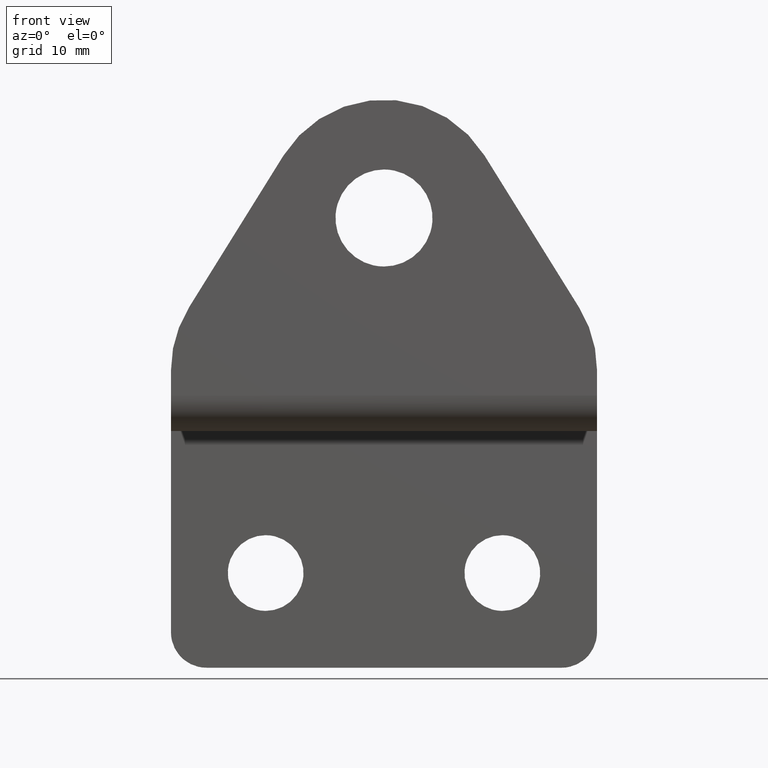
[diagram: clean part render]
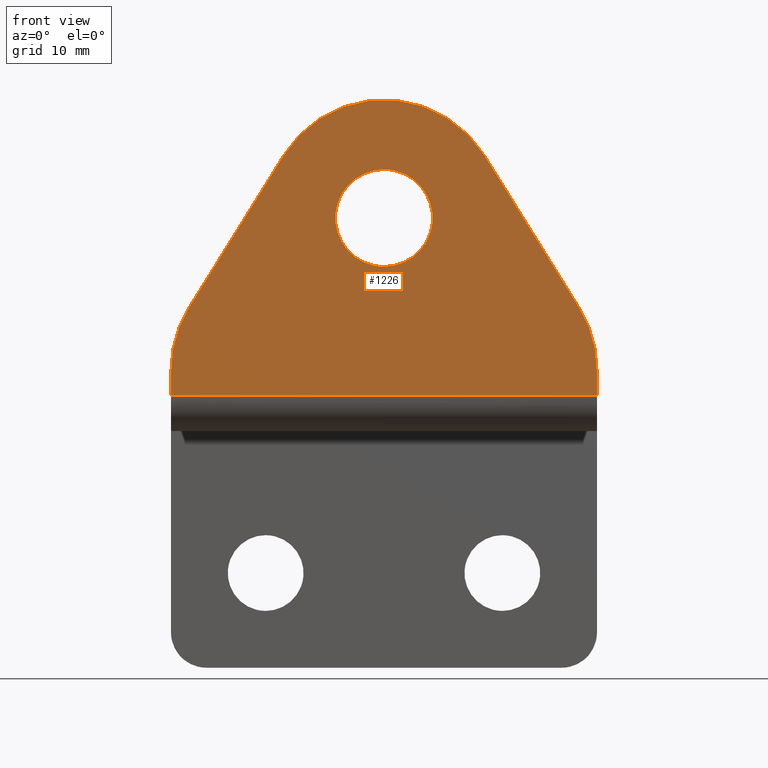
[diagram: same view with one face highlighted and labeled with its STEP entity id]
A machine part, front view. The second image highlights one B-rep face of the part: STEP entity #1226.
In plain terms, the highlighted face is a freeform B-spline surface patch.
Its self-contained STEP definition (entity closure, byte-faithful):
#426=CARTESIAN_POINT('',(0.0,-15.0,42.100000000000001));
#427=VERTEX_POINT('',#426);
#428=CARTESIAN_POINT('',(-4.087361068302946,-15.0,38.321682292520741));
#429=VERTEX_POINT('',#428);
#430=CARTESIAN_POINT('',(0.0,-15.0,42.100000000000001));
#431=CARTESIAN_POINT('',(-3.790001015730614,-14.999999999999996,42.100000000000009));
#432=CARTESIAN_POINT('',(-4.087361068302946,-15.000000000000002,38.321682292520741));
#440=(BOUNDED_CURVE()B_SPLINE_CURVE(2,(#430,#431,#432),.UNSPECIFIED.,.F.,.U.)B_SPLINE_CURVE_WITH_KNOTS((3,3),(0.0,0.236331300629699),.UNSPECIFIED.)CURVE()GEOMETRIC_REPRESENTATION_ITEM()RATIONAL_B_SPLINE_CURVE((1.0,0.723120658608791,0.969723356165413))REPRESENTATION_ITEM(''));
#441=EDGE_CURVE('',#427,#429,#440,.T.);
#482=CARTESIAN_POINT('',(4.087361068302946,-15.0,37.678317707479259));
#483=VERTEX_POINT('',#482);
#489=CARTESIAN_POINT('',(4.087361068302946,-15.000000000000005,37.678317707479259));
#490=CARTESIAN_POINT('',(4.100000000000001,-15.000000000000002,37.838910561231806));
#491=CARTESIAN_POINT('',(4.100000000000001,-15.0,38.0));
#492=CARTESIAN_POINT('',(4.100000000000001,-14.999999999999996,42.100000000000001));
#493=CARTESIAN_POINT('',(0.0,-15.0,42.100000000000001));
#501=(BOUNDED_CURVE()B_SPLINE_CURVE(2,(#489,#490,#491,#492,#493),.UNSPECIFIED.,.F.,.U.)B_SPLINE_CURVE_WITH_KNOTS((3,2,3),(0.736331300629699,0.750000000000000,1.0),.UNSPECIFIED.)CURVE()GEOMETRIC_REPRESENTATION_ITEM()RATIONAL_B_SPLINE_CURVE((0.969723356165413,0.983986122577757,1.0,0.707106781186547,1.0))REPRESENTATION_ITEM(''));
#502=EDGE_CURVE('',#483,#427,#501,.T.);
#525=CARTESIAN_POINT('',(0.0,-15.0,33.899999999999999));
#526=VERTEX_POINT('',#525);
#527=CARTESIAN_POINT('',(-4.087361068302946,-15.000000000000002,38.321682292520741));
#528=CARTESIAN_POINT('',(-4.100000000000001,-15.000000000000002,38.161089438768194));
#529=CARTESIAN_POINT('',(-4.100000000000001,-15.0,38.0));
#530=CARTESIAN_POINT('',(-4.100000000000001,-14.999999999999996,33.899999999999999));
#531=CARTESIAN_POINT('',(0.0,-15.0,33.899999999999999));
#539=(BOUNDED_CURVE()B_SPLINE_CURVE(2,(#527,#528,#529,#530,#531),.UNSPECIFIED.,.F.,.U.)B_SPLINE_CURVE_WITH_KNOTS((3,2,3),(0.236331300629699,0.250000000000000,0.500000000000000),.UNSPECIFIED.)CURVE()GEOMETRIC_REPRESENTATION_ITEM()RATIONAL_B_SPLINE_CURVE((0.969723356165413,0.983986122577757,1.0,0.707106781186547,1.0))REPRESENTATION_ITEM(''));
#540=EDGE_CURVE('',#429,#526,#539,.T.);
#542=CARTESIAN_POINT('',(0.0,-15.0,33.899999999999999));
#543=CARTESIAN_POINT('',(3.790001015730626,-14.999999999999996,33.899999999999991));
#544=CARTESIAN_POINT('',(4.087361068302946,-15.000000000000004,37.678317707479259));
#552=(BOUNDED_CURVE()B_SPLINE_CURVE(2,(#542,#543,#544),.UNSPECIFIED.,.F.,.U.)B_SPLINE_CURVE_WITH_KNOTS((3,3),(0.500000000000000,0.736331300629700),.UNSPECIFIED.)CURVE()GEOMETRIC_REPRESENTATION_ITEM()RATIONAL_B_SPLINE_CURVE((1.0,0.723120658608790,0.969723356165414))REPRESENTATION_ITEM(''));
#553=EDGE_CURVE('',#526,#483,#552,.T.);
#621=CARTESIAN_POINT('',(16.490566801318948,-15.0,30.425869033588000));
#622=VERTEX_POINT('',#621);
#628=CARTESIAN_POINT('',(18.0,-15.0,25.142851392850851));
#629=VERTEX_POINT('',#628);
#630=CARTESIAN_POINT('',(18.0,-15.0,25.142851392850851));
#631=CARTESIAN_POINT('',(18.0,-15.000000000000002,27.999993468322717));
#632=CARTESIAN_POINT('',(16.490566801318970,-15.0,30.425869033588022));
#640=(BOUNDED_CURVE()B_SPLINE_CURVE(2,(#630,#631,#632),.UNSPECIFIED.,.F.,.U.)CURVE()GEOMETRIC_REPRESENTATION_ITEM()QUASI_UNIFORM_CURVE()RATIONAL_B_SPLINE_CURVE((1.0,0.961523967494284,1.0))REPRESENTATION_ITEM(''));
#641=EDGE_CURVE('',#629,#622,#640,.T.);
#682=CARTESIAN_POINT('',(-18.000007000000000,-15.0,25.142857357129198));
#683=VERTEX_POINT('',#682);
#689=CARTESIAN_POINT('',(-16.490571431578150,-15.0,30.425878806377799));
#690=VERTEX_POINT('',#689);
#691=CARTESIAN_POINT('',(-16.490571431578122,-15.0,30.425878806377789));
#692=CARTESIAN_POINT('',(-18.000007000000004,-14.999999999999996,28.000001858476203));
#693=CARTESIAN_POINT('',(-18.000007000000000,-15.0,25.142857357129198));
#701=(BOUNDED_CURVE()B_SPLINE_CURVE(2,(#691,#692,#693),.UNSPECIFIED.,.F.,.U.)CURVE()GEOMETRIC_REPRESENTATION_ITEM()QUASI_UNIFORM_CURVE()RATIONAL_B_SPLINE_CURVE((1.0,0.961523905880091,1.0))REPRESENTATION_ITEM(''));
#702=EDGE_CURVE('',#690,#683,#701,.T.);
#745=CARTESIAN_POINT('',(-8.490576999999998,-15.0,43.283003999999998));
#746=VERTEX_POINT('',#745);
#752=CARTESIAN_POINT('',(8.488389041618101,-15.0,43.286516005663742));
#753=VERTEX_POINT('',#752);
#754=CARTESIAN_POINT('',(8.488389041618101,-15.0,43.286516005663742));
#755=CARTESIAN_POINT('',(5.552138465564839,-15.000000000000002,48.001137704052809));
#756=CARTESIAN_POINT('',(-0.002069298322002,-15.0,47.999988846750377));
#757=CARTESIAN_POINT('',(-5.556277062208844,-15.000000000000002,47.998839989447980));
#758=CARTESIAN_POINT('',(-8.490577000000030,-15.0,43.283004000000012));
#766=(BOUNDED_CURVE()B_SPLINE_CURVE(2,(#754,#755,#756,#757,#758),.UNSPECIFIED.,.F.,.U.)B_SPLINE_CURVE_WITH_KNOTS((3,2,3),(0.0,0.500000000000000,1.0),.UNSPECIFIED.)CURVE()GEOMETRIC_REPRESENTATION_ITEM()RATIONAL_B_SPLINE_CURVE((1.0,0.874207571538665,1.0,0.874207571538665,1.0))REPRESENTATION_ITEM(''));
#767=EDGE_CURVE('',#753,#746,#766,.T.);
#788=CARTESIAN_POINT('',(-16.490571431578150,-15.0,30.425878806377799));
#789=CARTESIAN_POINT('',(-8.490576999999998,-15.0,43.283003999999998));
#790=QUASI_UNIFORM_CURVE('',1,(#788,#789),.UNSPECIFIED.,.F.,.U.);
#791=EDGE_CURVE('',#690,#746,#790,.T.);
#802=CARTESIAN_POINT('',(8.488389041618101,-15.0,43.286516005663742));
#803=CARTESIAN_POINT('',(16.490566801318948,-15.0,30.425869033588000));
#804=QUASI_UNIFORM_CURVE('',1,(#802,#803),.UNSPECIFIED.,.F.,.U.);
#805=EDGE_CURVE('',#753,#622,#804,.T.);
#955=CARTESIAN_POINT('',(-18.000007000000000,-15.0,23.0));
#956=VERTEX_POINT('',#955);
#977=CARTESIAN_POINT('',(18.0,-15.0,23.0));
#978=VERTEX_POINT('',#977);
#992=CARTESIAN_POINT('',(-18.000007000000000,-15.0,23.0));
#993=CARTESIAN_POINT('',(18.0,-15.0,23.0));
#994=QUASI_UNIFORM_CURVE('',1,(#992,#993),.UNSPECIFIED.,.F.,.U.);
#995=EDGE_CURVE('',#956,#978,#994,.T.);
#1074=CARTESIAN_POINT('',(18.0,-15.0,25.142851392850851));
#1075=CARTESIAN_POINT('',(18.0,-15.0,23.0));
#1076=QUASI_UNIFORM_CURVE('',1,(#1074,#1075),.UNSPECIFIED.,.F.,.U.);
#1077=EDGE_CURVE('',#629,#978,#1076,.T.);
#1112=CARTESIAN_POINT('',(-18.000007000000000,-15.0,25.142857357129198));
#1113=CARTESIAN_POINT('',(-18.000007000000000,-15.0,23.0));
#1114=QUASI_UNIFORM_CURVE('',1,(#1112,#1113),.UNSPECIFIED.,.F.,.U.);
#1115=EDGE_CURVE('',#683,#956,#1114,.T.);
#1205=CARTESIAN_POINT('',(-19.798207955759619,-15.0,49.248738006509491));
#1206=CARTESIAN_POINT('',(-19.798207955759619,-15.0,21.751249946172351));
#1207=CARTESIAN_POINT('',(19.798201277624759,-15.0,49.248738006509491));
#1208=CARTESIAN_POINT('',(19.798201277624759,-15.0,21.751249946172351));
#1209=B_SPLINE_SURFACE_WITH_KNOTS('',1,1,((#1205,#1207),(#1206,#1208)),.UNSPECIFIED.,.F.,.F.,.U.,(2,2),(2,2),(0.0,27.497488060337140),(0.0,39.596409233384378),.UNSPECIFIED.);
#1210=ORIENTED_EDGE('',*,*,#791,.F.);
#1211=ORIENTED_EDGE('',*,*,#702,.T.);
#1212=ORIENTED_EDGE('',*,*,#1115,.T.);
#1213=ORIENTED_EDGE('',*,*,#995,.T.);
#1214=ORIENTED_EDGE('',*,*,#1077,.F.);
#1215=ORIENTED_EDGE('',*,*,#641,.T.);
#1216=ORIENTED_EDGE('',*,*,#805,.F.);
#1217=ORIENTED_EDGE('',*,*,#767,.T.);
#1218=EDGE_LOOP('',(#1210,#1211,#1212,#1213,#1214,#1215,#1216,#1217));
#1219=FACE_OUTER_BOUND('',#1218,.T.);
#1220=ORIENTED_EDGE('',*,*,#553,.F.);
#1221=ORIENTED_EDGE('',*,*,#540,.F.);
#1222=ORIENTED_EDGE('',*,*,#441,.F.);
#1223=ORIENTED_EDGE('',*,*,#502,.F.);
#1224=EDGE_LOOP('',(#1220,#1221,#1222,#1223));
#1225=FACE_BOUND('',#1224,.T.);
#1226=ADVANCED_FACE('',(#1219,#1225),#1209,.T.);